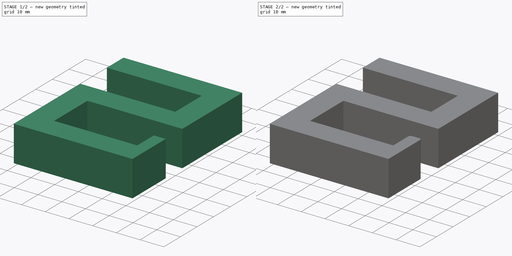
[diagram: build sequence overview — one tinted view per stage of 2, left to right]
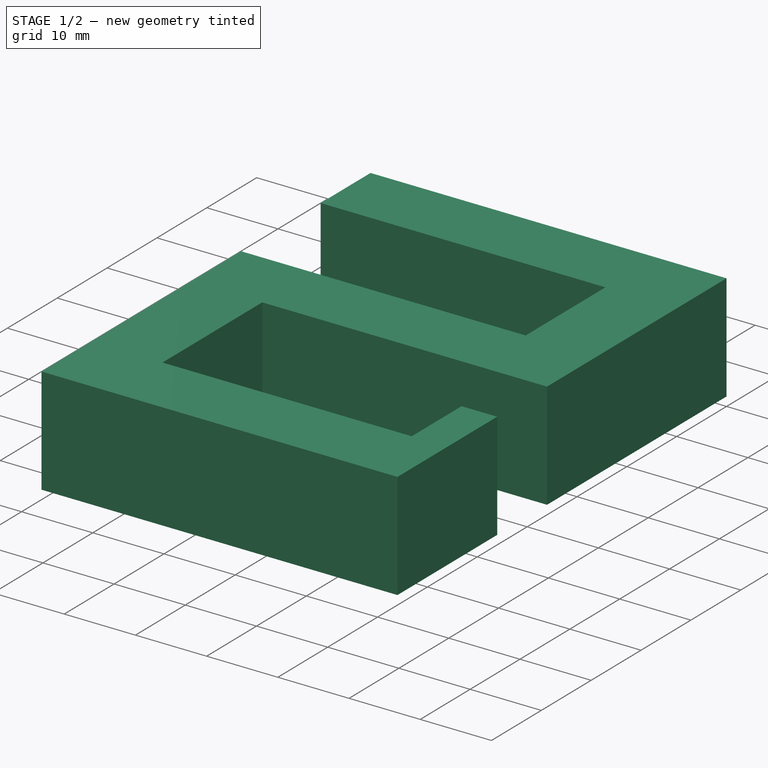
[diagram: stage 1 of 2 — iso view after this stage's code; geometry added in this stage tinted green]
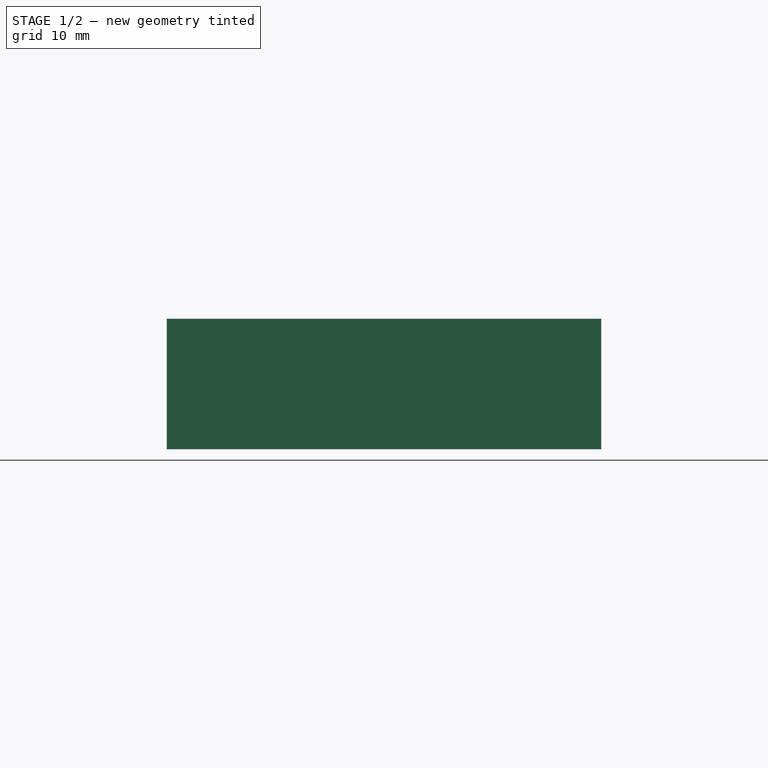
[diagram: stage 1 of 2 — front view after this stage's code; geometry added in this stage tinted green]
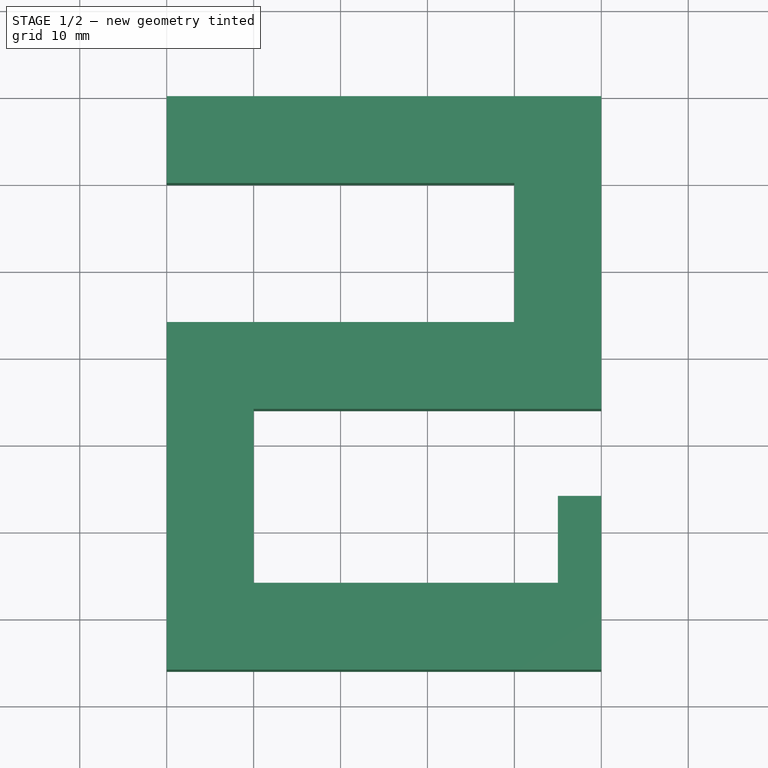
[diagram: stage 1 of 2 — top view after this stage's code; geometry added in this stage tinted green]
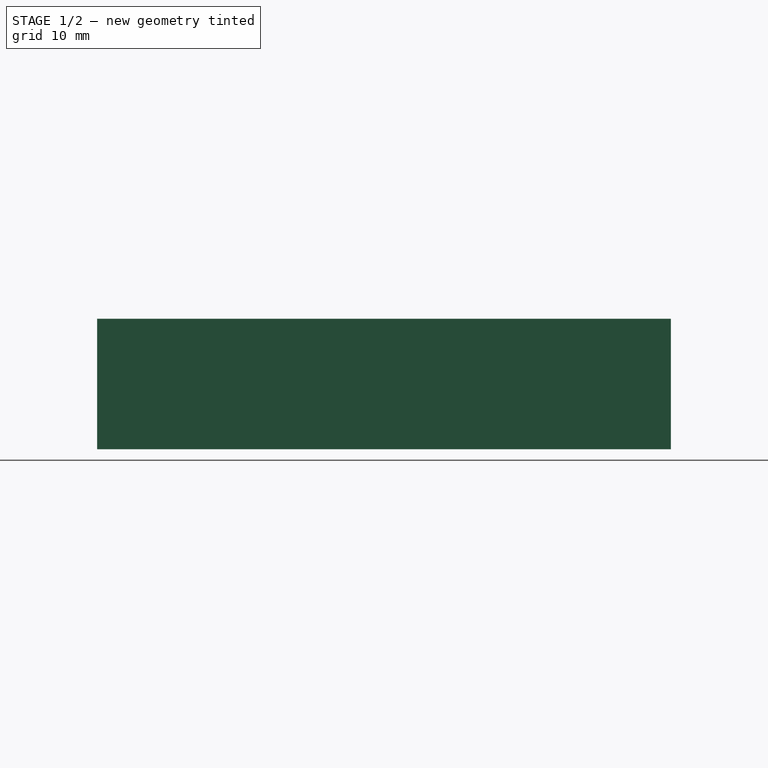
[diagram: stage 1 of 2 — right view after this stage's code; geometry added in this stage tinted green]
FCSTD DOCUMENT  (FreeCAD 0.19R14555 (Git shallow))
Label: BagHook
License: All rights reserved
LicenseURL: http://en.wikipedia.org/wiki/All_rights_reserved
objects: Sketcher::SketchObject×1, PartDesign::Pad×1, PartDesign::Fillet×1, PartDesign::Body×1
note: 6 computed .brp shape members not serialized (recipe doc carries the construction recipe); baked Part::Feature solids carry a one-line shape summary decoded from their .brp

FEATURE [Sketcher::SketchObject] Sketch
  FullyConstrained = true
  MapMode = 5
  Support = -> [XY_Plane]
  sketch-geometry (14):
    g0: LineSegment StartX=0 StartY=-10 StartZ=0 EndX=40 EndY=-10 EndZ=0
    g1: LineSegment StartX=40 StartY=-10 StartZ=0 EndX=40 EndY=-26 EndZ=0
    g2: LineSegment StartX=40 StartY=-26 StartZ=0 EndX=0 EndY=-26 EndZ=0
    g3: LineSegment StartX=0 StartY=-26 StartZ=0 EndX=0 EndY=-66 EndZ=0
    g4: LineSegment StartX=0 StartY=-66 StartZ=0 EndX=50 EndY=-66 EndZ=0
    g5: LineSegment StartX=50 StartY=-66 StartZ=0 EndX=50 EndY=-46 EndZ=0
    g6: LineSegment StartX=50 StartY=-46 StartZ=0 EndX=45 EndY=-46 EndZ=0
    g7: LineSegment StartX=45 StartY=-46 StartZ=0 EndX=45 EndY=-56 EndZ=0
    g8: LineSegment StartX=45 StartY=-56 StartZ=0 EndX=10 EndY=-56 EndZ=0
    g9: LineSegment StartX=10 StartY=-56 StartZ=0 EndX=10 EndY=-36 EndZ=0
    g10: LineSegment StartX=10 StartY=-36 StartZ=0 EndX=50 EndY=-36 EndZ=0
    g11: LineSegment StartX=50 StartY=-36 StartZ=0 EndX=50 EndY=0 EndZ=0
    g12: LineSegment StartX=50 StartY=0 StartZ=0 EndX=0 EndY=0 EndZ=0
    g13: LineSegment StartX=0 StartY=0 StartZ=0 EndX=0 EndY=-10 EndZ=0
  constraints (41):
    c: Horizontal(g0)
    c: Coincident(g0,g1)
    c: Vertical(g1)
    c: Coincident(g1,g2)
    c: Horizontal(g2)
    c: Coincident(g2,g3)
    c: Coincident(g3,g4)
    c: Horizontal(g4)
    c: Coincident(g4,g5)
    c: Coincident(g5,g6)
    c: Horizontal(g6)
    c: Coincident(g6,g7)
    c: Vertical(g7)
    c: Coincident(g7,g8)
    c: Horizontal(g8)
    c: Coincident(g8,g9)
    c: Vertical(g9)
    c: Coincident(g9,g10)
    c: Horizontal(g10)
    c: Coincident(g10,g11)
    c: Coincident(g11,g12)
    c: Horizontal(g12)
    c: Coincident(g12,g13)
    c: Coincident(g13,g0)
    c: Vertical(g11,g10)
    c: Vertical(g10,g5)
    c: Vertical(g5,g4)
    c: Vertical(g12,g0)
    c: Vertical(g0,g2)
    c: Vertical(g2,g3)
    c: DistanceX(g6,g6) = 5
    c: DistanceY(g4,g7) = 10
    c: DistanceX(g3,g8) = 10
    c: DistanceY(g9,g2) = 10
    c: DistanceY(g0,g12) = 10
    c: DistanceX(g0,g11) = 10
    c: DistanceY(g2,g0) = 16
    c: DistanceY(g7,g10) = 20
    c: DistanceX(g12,g11) = 50
    c: Coincident(g12,g-1)
    c: DistanceY(g5,g10) = 10
FEATURE [PartDesign::Pad] Pad
  Direction = (1,1,1)
  Length = 15
  Length2 = 100
  Profile = -> Sketch
  Type = 0
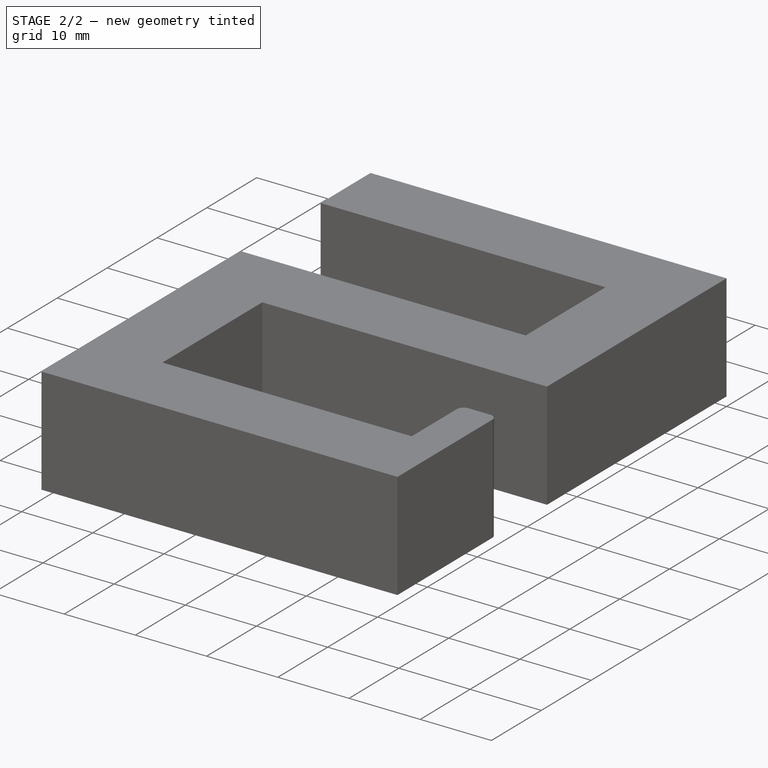
[diagram: stage 2 of 2 — iso view after this stage's code; geometry added in this stage tinted green]
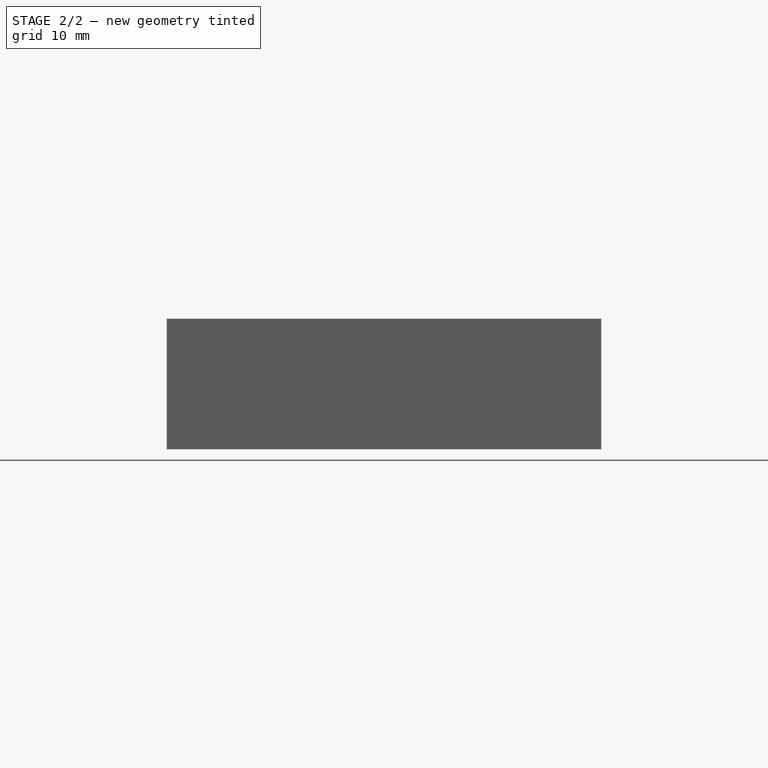
[diagram: stage 2 of 2 — front view after this stage's code; geometry added in this stage tinted green]
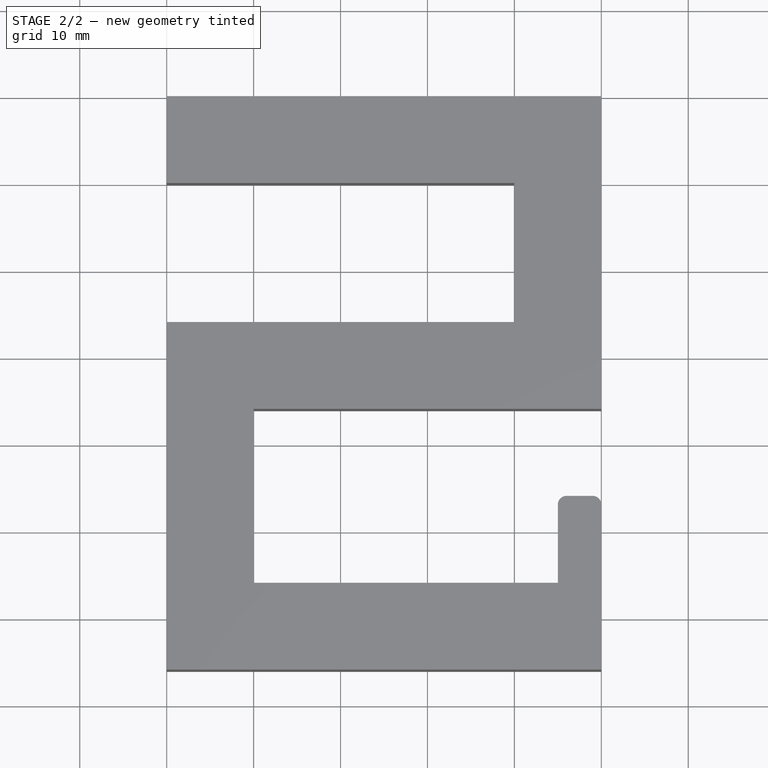
[diagram: stage 2 of 2 — top view after this stage's code; geometry added in this stage tinted green]
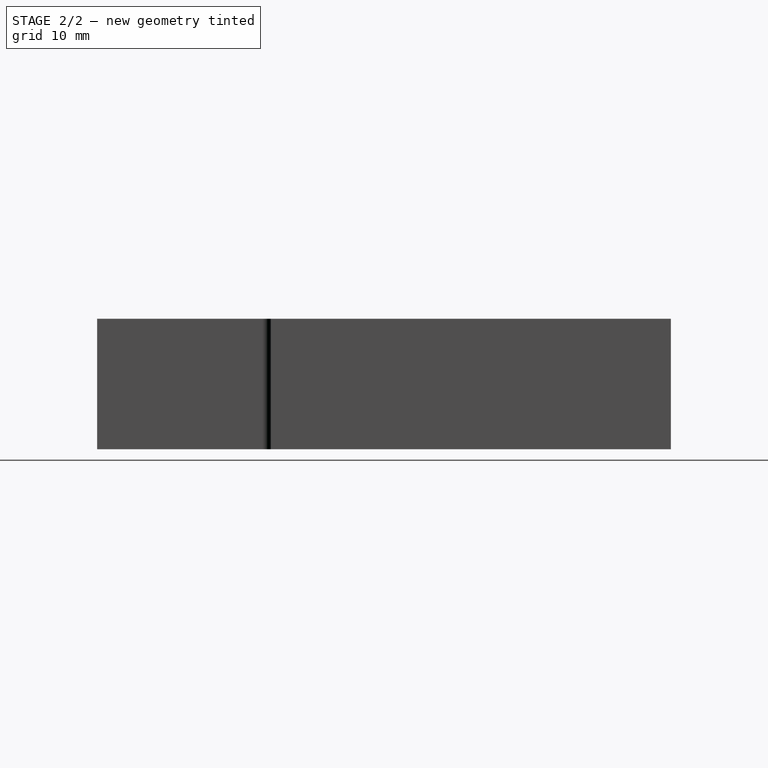
[diagram: stage 2 of 2 — right view after this stage's code; geometry added in this stage tinted green]
FEATURE [PartDesign::Fillet] Fillet
  Base = -> Pad [Edge17,Edge20]
  BaseFeature = -> Pad
  Radius = 1
  SupportTransform = false
FEATURE [PartDesign::Body] Body
  Group = -> [Sketch,Pad,Fillet]
  Origin = -> Origin
  Tip = -> Fillet
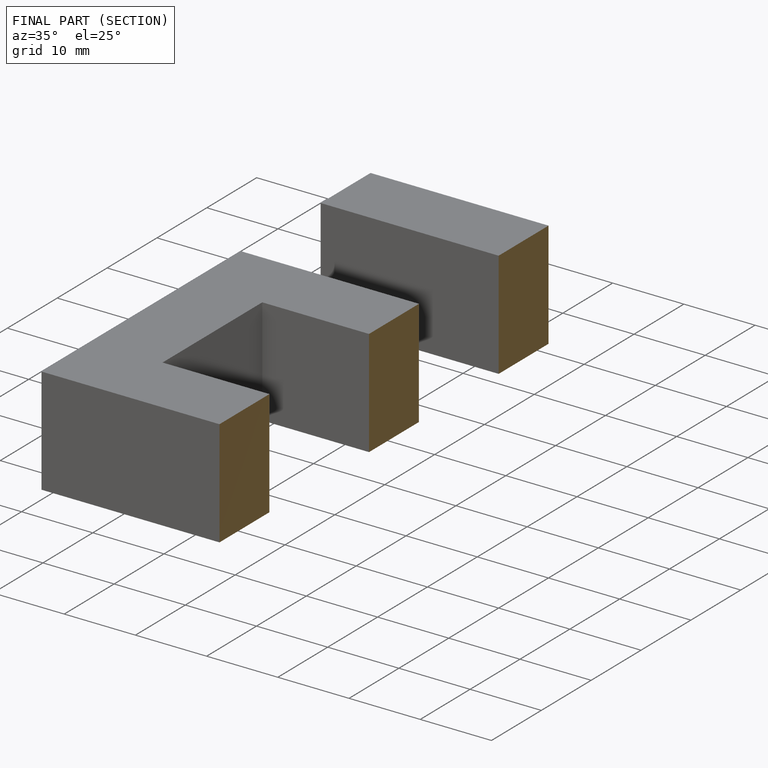
[diagram: finished part — half-section view (interior)]
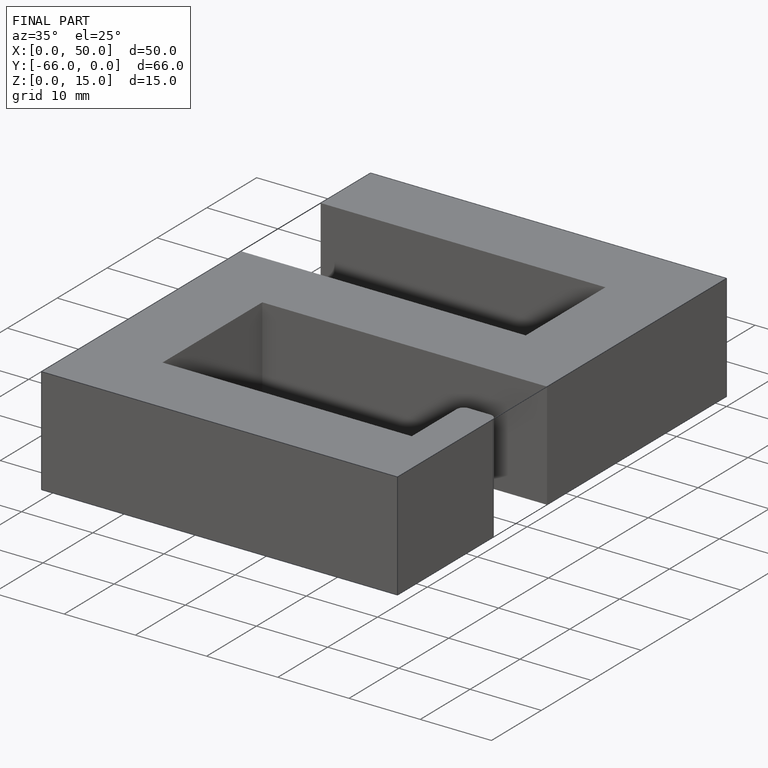
[diagram: finished part — iso view with bounding-box wireframe]
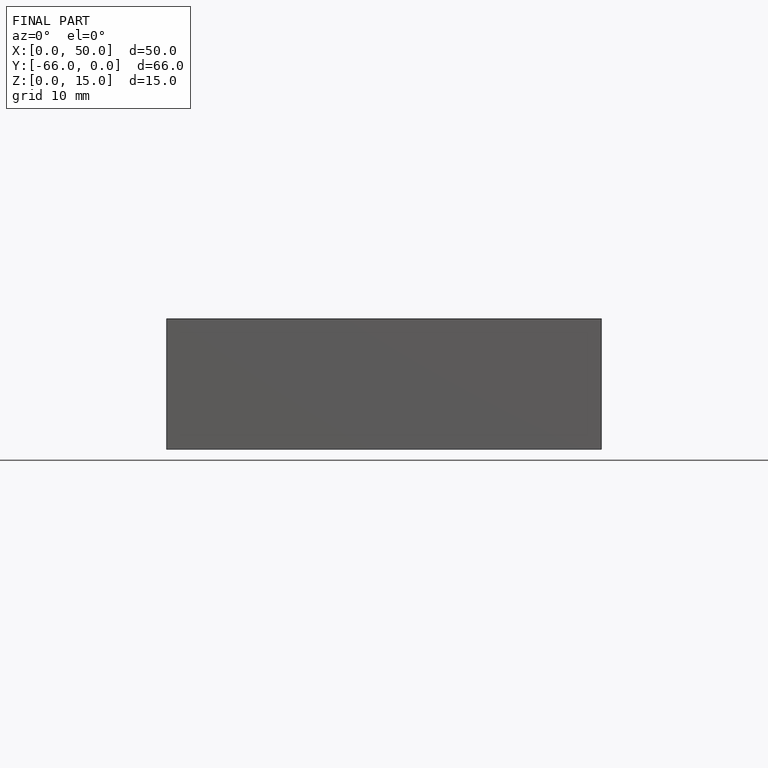
[diagram: finished part — front view with bounding-box wireframe]
